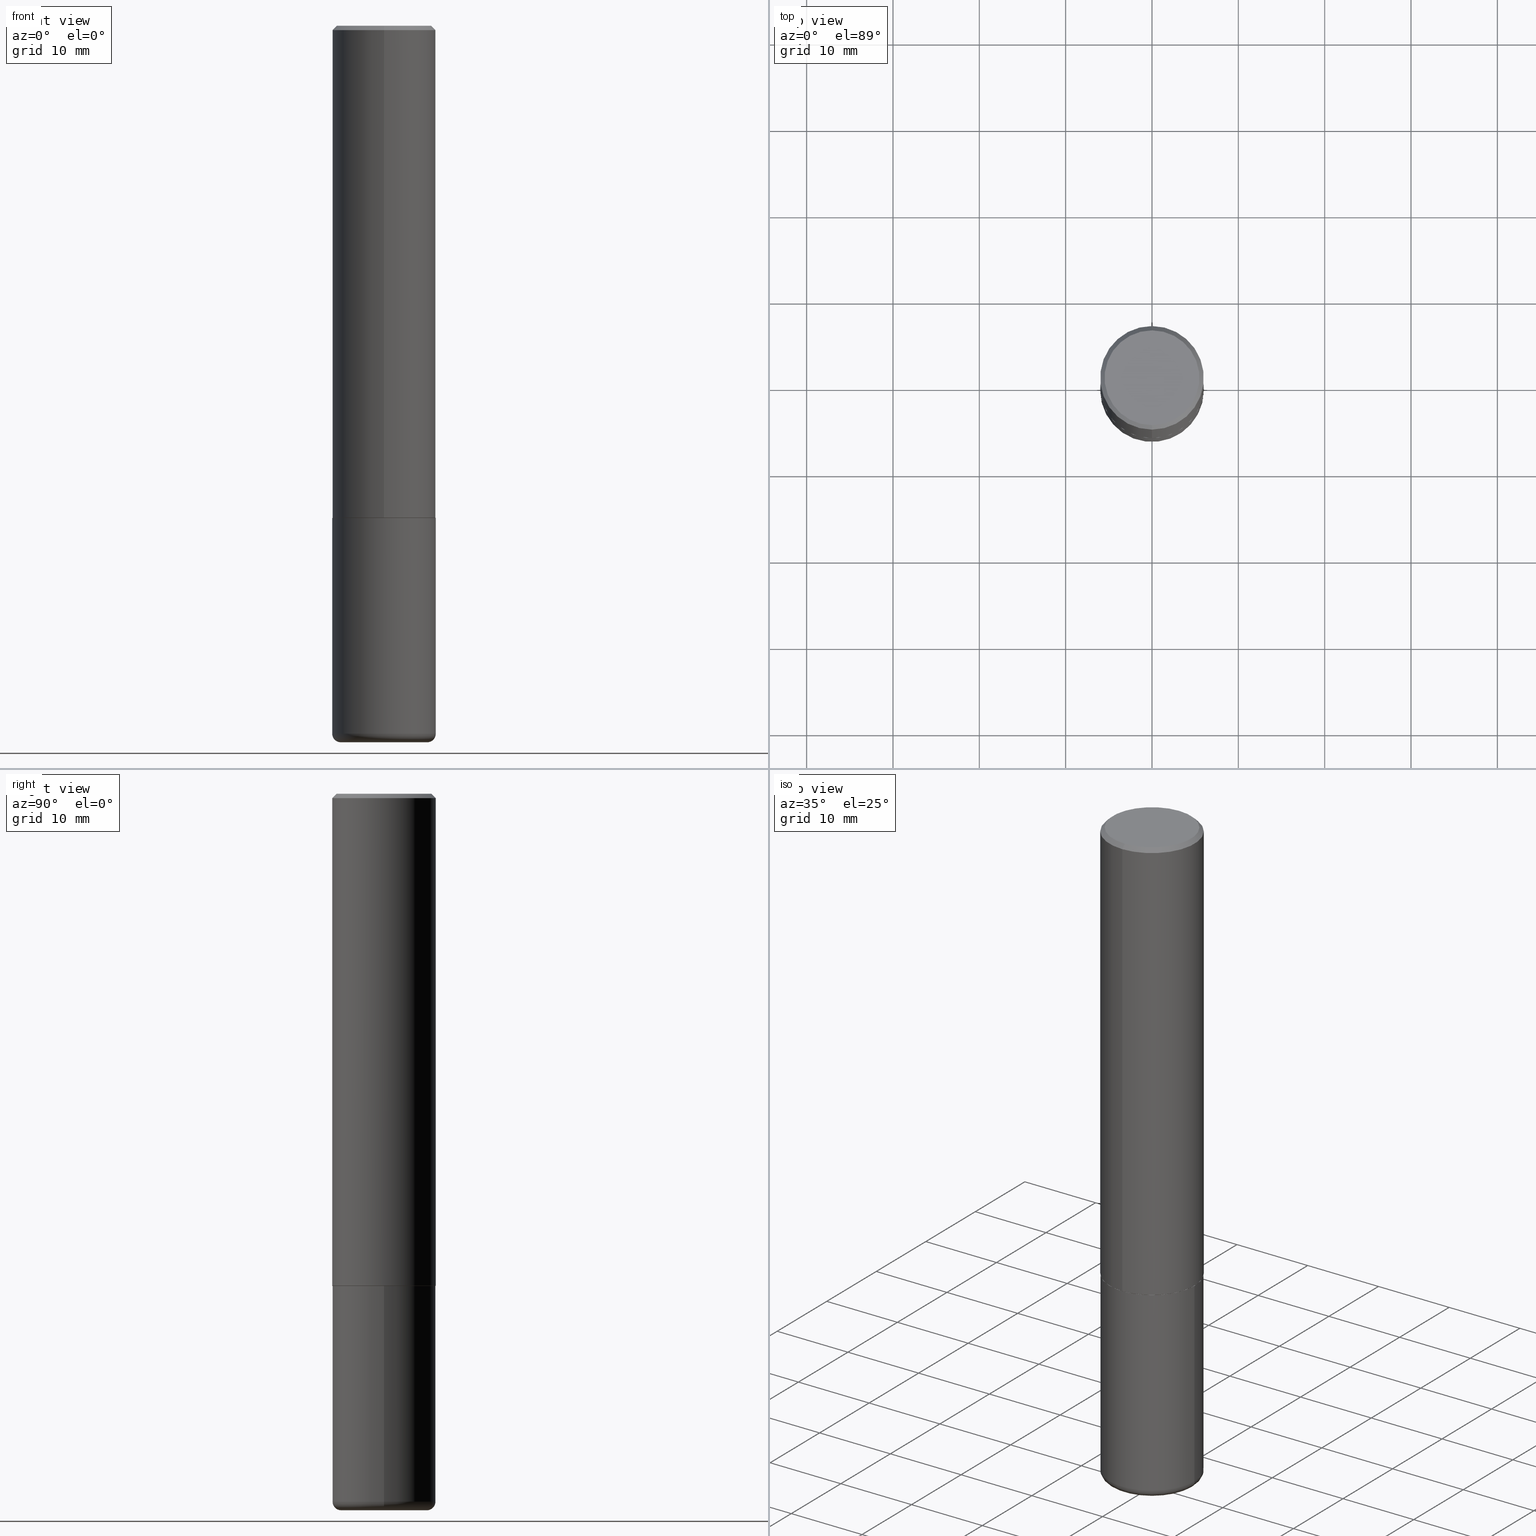
[diagram: canonical four-view strip — front | top / right | iso, engineering-drawing reading convention]
A machine part, canonical four-view strip (front | top / right | iso — engineering-drawing reading convention). The complete STEP part file that produces these views, byte-faithful:
ISO-10303-21;
HEADER;
FILE_DESCRIPTION (( 'STEP AP203' ),
    '1' );
FILE_NAME ('47127.STEP',
    '2024-03-05T21:29:14',
    ( '' ),
    ( '' ),
    'SwSTEP 2.0',
    'SolidWorks 2023',
    '' );
FILE_SCHEMA (( 'CONFIG_CONTROL_DESIGN' ));
ENDSEC;

DATA;
#1 = ORIENTED_EDGE ( 'NONE', *, *, #334, .T. ) ;
#2 = APPROVAL_DATE_TIME ( #75, #70 ) ;
#3 = DIRECTION ( 'NONE',  ( 2.445221809746292518E-29, -3.491835051801734308E-15, -1.000000000000000000 ) ) ;
#4 = COORDINATED_UNIVERSAL_TIME_OFFSET ( 5, 0, .BEHIND. ) ;
#5 = MANIFOLD_SOLID_BREP ( 'Body-Move/Copy2[2]', #49 ) ;
#6 = CARTESIAN_POINT ( 'NONE',  ( 5.487876547960065873E-29, -7.835233272497903917E-15, -2.244100000000000428 ) ) ;
#7 = ADVANCED_FACE ( 'NONE', ( #254 ), #137, .T. ) ;
#8 = AXIS2_PLACEMENT_3D ( 'NONE', #179, #269, #401 ) ;
#9 = FACE_OUTER_BOUND ( 'NONE', #319, .T. ) ;
#10 = EDGE_CURVE ( 'NONE', #187, #349, #339, .T. ) ;
#11 = DIRECTION ( 'NONE',  ( 1.000000000000000000, -6.982962677686270655E-15, 4.883557194083114583E-29 ) ) ;
#12 = CARTESIAN_POINT ( 'NONE',  ( 5.487322263251655570E-29, -7.836027039748271518E-15, -2.244099999999999984 ) ) ;
#13 = CONICAL_SURFACE ( 'NONE', #182, 0.2351999999999999924, 0.7853981633976873100 ) ;
#14 = AXIS2_PLACEMENT_3D ( 'NONE', #16, #379, #133 ) ;
#15 = FACE_OUTER_BOUND ( 'NONE', #134, .T. ) ;
#16 = CARTESIAN_POINT ( 'NONE',  ( 7.894706947007477118E-29, -1.127154920618732880E-14, -3.228299999999999947 ) ) ;
#17 = CARTESIAN_POINT ( 'NONE',  ( 1.678301941865357577E-15, 0.2362000000000001598, -8.247714392355702416E-16 ) ) ;
#18 = EDGE_LOOP ( 'NONE', ( #220, #340 ) ) ;
#19 = MANIFOLD_SOLID_BREP ( 'Body-Move/Copy2[1]', #416 ) ;
#20 = DIRECTION ( 'NONE',  ( 1.000000000000000000, -6.982962677686266711E-15, 4.876176775795936353E-29 ) ) ;
#21 = CONICAL_SURFACE ( 'NONE', #239, 0.2351999999999999924, 0.7853981633976873100 ) ;
#22 = ORIENTED_EDGE ( 'NONE', *, *, #355, .T. ) ;
#23 = DIRECTION ( 'NONE',  ( -6.982962677686265922E-15, -1.000000000000000000, 3.487819265831410167E-15 ) ) ;
#24 = VERTEX_POINT ( 'NONE', #380 ) ;
#25 = EDGE_CURVE ( 'NONE', #384, #171, #392, .T. ) ;
#26 = EDGE_LOOP ( 'NONE', ( #201, #242, #196, #360 ) ) ;
#27 = AXIS2_PLACEMENT_3D ( 'NONE', #415, #259, #99 ) ;
#28 = AXIS2_PLACEMENT_3D ( 'NONE', #206, #266, #42 ) ;
#29 = DIRECTION ( 'NONE',  ( -2.445221809746292518E-29, 3.491835051801734308E-15, 1.000000000000000000 ) ) ;
#30 = VECTOR ( 'NONE', #217, 39.37007874015748143 ) ;
#31 = APPLICATION_PROTOCOL_DEFINITION ( 'international standard', 'config_control_design', 1994, #267 ) ;
#32 = ORIENTED_EDGE ( 'NONE', *, *, #123, .F. ) ;
#33 = APPROVAL_STATUS ( 'not_yet_approved' ) ;
#34 = VERTEX_POINT ( 'NONE', #224 ) ;
#35 = APPROVAL_STATUS ( 'not_yet_approved' ) ;
#36 = UNCERTAINTY_MEASURE_WITH_UNIT (LENGTH_MEASURE( 1.000000000000000082E-05 ), #194, 'distance_accuracy_value', 'NONE');
#37 = ORIENTED_EDGE ( 'NONE', *, *, #180, .T. ) ;
#38 = CONICAL_SURFACE ( 'NONE', #394, 0.2362000000000000766, 0.7853981633974480570 ) ;
#39 = CC_DESIGN_SECURITY_CLASSIFICATION ( #85, ( #183 ) ) ;
#40 = CARTESIAN_POINT ( 'NONE',  ( 5.487876547960065873E-29, -7.835233272497903917E-15, -2.244100000000000428 ) ) ;
#41 = ADVANCED_FACE ( 'NONE', ( #387 ), #170, .T. ) ;
#42 = DIRECTION ( 'NONE',  ( -1.000000000000000000, 6.982962677686265922E-15, -4.876176775795935793E-29 ) ) ;
#43 = DIRECTION ( 'NONE',  ( 6.982962677686265922E-15, 1.000000000000000000, -3.487819265831410167E-15 ) ) ;
#44 = ADVANCED_FACE ( 'NONE', ( #106 ), #142, .T. ) ;
#45 = CIRCLE ( 'NONE', #378, 0.2351999999999999924 ) ;
#46 = DIRECTION ( 'NONE',  ( -1.000000000000000000, 6.982962677686265922E-15, -4.876176775795935793E-29 ) ) ;
#47 = DIRECTION ( 'NONE',  ( -6.982962677686265133E-15, -1.000000000000000000, 3.484499991918703113E-15 ) ) ;
#48 = DIRECTION ( 'NONE',  ( -2.445221809746292518E-29, 3.491835051801734308E-15, 1.000000000000000000 ) ) ;
#49 = CLOSED_SHELL ( 'NONE', ( #116, #128, #41, #83, #7, #54, #58, #162 ) ) ;
#50 = EDGE_CURVE ( 'NONE', #82, #103, #326, .T. ) ;
#51 = APPROVAL_PERSON_ORGANIZATION ( #225, #237, #320 ) ;
#52 = DIRECTION ( 'NONE',  ( 1.000000000000000000, -6.982962677686271444E-15, 0.000000000000000000 ) ) ;
#53 = EDGE_LOOP ( 'NONE', ( #69, #149, #22, #290 ) ) ;
#54 = ADVANCED_FACE ( 'NONE', ( #390 ), #13, .T. ) ;
#55 = CARTESIAN_POINT ( 'NONE',  ( 4.890443619492597157E-31, -6.983670103603485970E-17, -0.02000000000000005246 ) ) ;
#56 = EDGE_LOOP ( 'NONE', ( #159, #306 ) ) ;
#57 = CARTESIAN_POINT ( 'NONE',  ( 0.000000000000000000, 0.000000000000000000, 0.000000000000000000 ) ) ;
#58 = ADVANCED_FACE ( 'NONE', ( #111 ), #74, .F. ) ;
#59 = DIRECTION ( 'NONE',  ( 1.000000000000000000, -6.982962677686266711E-15, 4.876176775795936353E-29 ) ) ;
#60 = PRODUCT_DEFINITION ( 'UNKNOWN', '', #183, #293 ) ;
#61 = PERSON_AND_ORGANIZATION_ROLE ( 'design_owner' ) ;
#62 = DATE_TIME_ROLE ( 'creation_date' ) ;
#63 = ORIENTED_EDGE ( 'NONE', *, *, #406, .F. ) ;
#64 = ORIENTED_EDGE ( 'NONE', *, *, #25, .F. ) ;
#65 = AXIS2_PLACEMENT_3D ( 'NONE', #240, #367, #88 ) ;
#66 = COORDINATED_UNIVERSAL_TIME_OFFSET ( 5, 0, .BEHIND. ) ;
#67 = DIRECTION ( 'NONE',  ( -6.982962677686265922E-15, -1.000000000000000000, 3.491835051801734308E-15 ) ) ;
#68 = ORIENTED_EDGE ( 'NONE', *, *, #337, .T. ) ;
#69 = ORIENTED_EDGE ( 'NONE', *, *, #300, .F. ) ;
#70 = APPROVAL ( #265, 'UNSPECIFIED' ) ;
#71 = CC_DESIGN_APPROVAL ( #359, ( #60 ) ) ;
#72 = DATE_TIME_ROLE ( 'classification_date' ) ;
#73 = DIRECTION ( 'NONE',  ( -2.445221809746292518E-29, 3.491835051801734702E-15, 1.000000000000000000 ) ) ;
#74 = PLANE ( 'NONE',  #161 ) ;
#75 = DATE_AND_TIME ( #107, #272 ) ;
#76 = EDGE_CURVE ( 'NONE', #187, #171, #178, .T. ) ;
#77 = CARTESIAN_POINT ( 'NONE',  ( 1.579546157692633621E-15, 0.2161999999999999478, -6.694880156558795861E-16 ) ) ;
#78 = VECTOR ( 'NONE', #277, 39.37007874015748143 ) ;
#79 = DIRECTION ( 'NONE',  ( -2.445468806185136597E-29, 3.491481338843145583E-15, 1.000000000000000000 ) ) ;
#80 = CARTESIAN_POINT ( 'NONE',  ( 4.890443619492597157E-31, -6.983670103603485970E-17, -0.02000000000000005246 ) ) ;
#81 = CARTESIAN_POINT ( 'NONE',  ( 7.991058417971171713E-29, -1.140911357093774644E-14, -3.267700000000000049 ) ) ;
#82 = VERTEX_POINT ( 'NONE', #296 ) ;
#83 = ADVANCED_FACE ( 'NONE', ( #205 ), #38, .T. ) ;
#84 = CIRCLE ( 'NONE', #203, 0.1968000000000000027 ) ;
#85 = SECURITY_CLASSIFICATION ( '', '', #260 ) ;
#86 = CARTESIAN_POINT ( 'NONE',  ( -1.642392821791754699E-15, -0.2352000000000078195, -2.244099999999999095 ) ) ;
#87 = ADVANCED_FACE ( 'NONE', ( #329 ), #176, .F. ) ;
#88 = DIRECTION ( 'NONE',  ( -1.000000000000000000, 7.105427357601014480E-15, 0.000000000000000000 ) ) ;
#89 = EDGE_LOOP ( 'NONE', ( #168, #68, #152, #218 ) ) ;
#90 = LINE ( 'NONE', #314, #347 ) ;
#91 = EDGE_LOOP ( 'NONE', ( #389, #130, #156, #317 ) ) ;
#92 = AXIS2_PLACEMENT_3D ( 'NONE', #356, #29, #67 ) ;
#93 = LENGTH_MEASURE_WITH_UNIT ( LENGTH_MEASURE( 0.02539999999999999897 ), #383 );
#94 = AXIS2_PLACEMENT_3D ( 'NONE', #234, #139, #46 ) ;
#95 = CIRCLE ( 'NONE', #126, 0.03940000000000005997 ) ;
#96 = VERTEX_POINT ( 'NONE', #299 ) ;
#97 = CC_DESIGN_APPROVAL ( #70, ( #85 ) ) ;
#98 = COORDINATED_UNIVERSAL_TIME_OFFSET ( 5, 0, .BEHIND. ) ;
#99 = DIRECTION ( 'NONE',  ( -6.982962677686265922E-15, -1.000000000000000000, 3.487819265831410167E-15 ) ) ;
#100 = DATE_AND_TIME ( #158, #361 ) ;
#101 = DIRECTION ( 'NONE',  ( 6.982962677686265922E-15, 1.000000000000000000, -3.487819265831410167E-15 ) ) ;
#102 = DATE_AND_TIME ( #315, #417 ) ;
#103 = VERTEX_POINT ( 'NONE', #262 ) ;
#104 = APPROVAL_PERSON_ORGANIZATION ( #418, #359, #165 ) ;
#105 = MECHANICAL_CONTEXT ( 'NONE', #248, 'mechanical' ) ;
#106 = FACE_OUTER_BOUND ( 'NONE', #56, .T. ) ;
#107 = CALENDAR_DATE ( 2024, 5, 3 ) ;
#108 = ORIENTED_EDGE ( 'NONE', *, *, #50, .F. ) ;
#109 = EDGE_CURVE ( 'NONE', #103, #82, #284, .T. ) ;
#110 = CARTESIAN_POINT ( 'NONE',  ( 5.487322263251655570E-29, -7.836027039748271518E-15, -2.244099999999999984 ) ) ;
#111 = FACE_OUTER_BOUND ( 'NONE', #18, .T. ) ;
#112 = CARTESIAN_POINT ( 'NONE',  ( 0.000000000000000000, 0.000000000000000000, 0.000000000000000000 ) ) ;
#113 = CARTESIAN_POINT ( 'NONE',  ( -1.620449627073635473E-15, -0.2362000000000001321, -0.01999999999999922673 ) ) ;
#114 = AXIS2_PLACEMENT_3D ( 'NONE', #57, #404, #59 ) ;
#115 = CARTESIAN_POINT ( 'NONE',  ( -1.649375784469443080E-15, -0.2362000000000080979, -2.243099999999999206 ) ) ;
#116 = ADVANCED_FACE ( 'NONE', ( #9 ), #21, .T. ) ;
#117 = CARTESIAN_POINT ( 'NONE',  ( 1.649375784469496920E-15, 0.2361999999999999933, -0.02000000000000087472 ) ) ;
#118 = VERTEX_POINT ( 'NONE', #77 ) ;
#119 = DIRECTION ( 'NONE',  ( -2.445221809746292518E-29, 3.491835051801734308E-15, 1.000000000000000000 ) ) ;
#120 = ORIENTED_EDGE ( 'NONE', *, *, #308, .F. ) ;
#121 = VECTOR ( 'NONE', #167, 39.37007874015748143 ) ;
#122 = CARTESIAN_POINT ( 'NONE',  ( -2.089361895350857775E-45, 2.983658608395124733E-31, 8.544672254365514246E-17 ) ) ;
#123 = EDGE_CURVE ( 'NONE', #96, #103, #396, .T. ) ;
#124 = CARTESIAN_POINT ( 'NONE',  ( 7.991058417971171713E-29, -1.140911357093774644E-14, -3.267700000000000049 ) ) ;
#125 = LINE ( 'NONE', #275, #177 ) ;
#126 = AXIS2_PLACEMENT_3D ( 'NONE', #402, #405, #190 ) ;
#127 = ORIENTED_EDGE ( 'NONE', *, *, #50, .T. ) ;
#128 = ADVANCED_FACE ( 'NONE', ( #204 ), #395, .T. ) ;
#129 = LINE ( 'NONE', #160, #121 ) ;
#130 = ORIENTED_EDGE ( 'NONE', *, *, #199, .T. ) ;
#131 = APPROVAL_DATE_TIME ( #169, #237 ) ;
#132 = ORIENTED_EDGE ( 'NONE', *, *, #10, .F. ) ;
#133 = DIRECTION ( 'NONE',  ( 1.000000000000000000, -6.982962677686265133E-15, 0.000000000000000000 ) ) ;
#134 = EDGE_LOOP ( 'NONE', ( #228, #310, #108, #120 ) ) ;
#135 = VECTOR ( 'NONE', #145, 39.37007874015748143 ) ;
#136 = LOCAL_TIME ( 16, 29, 14.00000000000000000, #316 ) ;
#137 = CYLINDRICAL_SURFACE ( 'NONE', #92, 0.2362000000000001598 ) ;
#138 = SHAPE_DEFINITION_REPRESENTATION ( #211, #243 ) ;
#139 = DIRECTION ( 'NONE',  ( 2.438088387897960049E-29, -3.491481338843145188E-15, -1.000000000000000000 ) ) ;
#140 = FACE_OUTER_BOUND ( 'NONE', #323, .T. ) ;
#141 = CIRCLE ( 'NONE', #14, 0.2361999999999999933 ) ;
#142 = PLANE ( 'NONE',  #94 ) ;
#143 = PRODUCT_RELATED_PRODUCT_CATEGORY ( 'detail', '', ( #274 ) ) ;
#144 = PLANE ( 'NONE',  #328 ) ;
#145 = DIRECTION ( 'NONE',  ( -2.445468806185136877E-29, 3.491481338843145188E-15, 1.000000000000000000 ) ) ;
#146 = CIRCLE ( 'NONE', #65, 0.03940000000000005997 ) ;
#147 = ADVANCED_FACE ( 'NONE', ( #264 ), #214, .T. ) ;
#148 = FACE_OUTER_BOUND ( 'NONE', #91, .T. ) ;
#149 = ORIENTED_EDGE ( 'NONE', *, *, #180, .F. ) ;
#150 = DIRECTION ( 'NONE',  ( -6.982962677686265133E-15, -1.000000000000000000, 3.484499991918703113E-15 ) ) ;
#151 = CARTESIAN_POINT ( 'NONE',  ( -1.620449627073635473E-15, -0.2362000000000001321, -0.01999999999999922673 ) ) ;
#152 = ORIENTED_EDGE ( 'NONE', *, *, #244, .F. ) ;
#153 = CC_DESIGN_PERSON_AND_ORGANIZATION_ASSIGNMENT ( #291, #197, ( #183 ) ) ;
#154 = AXIS2_PLACEMENT_3D ( 'NONE', #333, #301, #11 ) ;
#155 = DIRECTION ( 'NONE',  ( -4.937700262165728178E-15, -0.7071067811867141062, 0.7071067811863809283 ) ) ;
#156 = ORIENTED_EDGE ( 'NONE', *, *, #209, .F. ) ;
#157 = CARTESIAN_POINT ( 'NONE',  ( 5.487322263251655570E-29, -7.836027039748271518E-15, -2.244099999999999984 ) ) ;
#158 = CALENDAR_DATE ( 2024, 5, 3 ) ;
#159 = ORIENTED_EDGE ( 'NONE', *, *, #352, .F. ) ;
#160 = CARTESIAN_POINT ( 'NONE',  ( 1.671196514507810212E-15, 0.2351999999999921653, -2.244100000000000872 ) ) ;
#161 = AXIS2_PLACEMENT_3D ( 'NONE', #238, #399, #297 ) ;
#162 = ADVANCED_FACE ( 'NONE', ( #140 ), #144, .F. ) ;
#163 = LOCAL_TIME ( 16, 29, 14.00000000000000000, #66 ) ;
#164 = CARTESIAN_POINT ( 'NONE',  ( 4.890443619492597157E-31, -6.983670103603485970E-17, -0.02000000000000005246 ) ) ;
#165 = APPROVAL_ROLE ( '' ) ;
#166 = ORIENTED_EDGE ( 'NONE', *, *, #244, .T. ) ;
#167 = DIRECTION ( 'NONE',  ( 5.024295867789263036E-15, 0.7071067811867189912, 0.7071067811863760433 ) ) ;
#168 = ORIENTED_EDGE ( 'NONE', *, *, #10, .T. ) ;
#169 = DATE_AND_TIME ( #282, #163 ) ;
#170 = CONICAL_SURFACE ( 'NONE', #270, 0.2362000000000000766, 0.7853981633974480570 ) ;
#171 = VERTEX_POINT ( 'NONE', #113 ) ;
#172 = AXIS2_PLACEMENT_3D ( 'NONE', #157, #280, #150 ) ;
#173 = DIRECTION ( 'NONE',  ( -6.982962677686265133E-15, -1.000000000000000000, 3.484499991918703113E-15 ) ) ;
#174 = APPROVAL_ROLE ( '' ) ;
#175 = DIRECTION ( 'NONE',  ( -6.982962677686265922E-15, -1.000000000000000000, 3.491835051801734308E-15 ) ) ;
#176 = PLANE ( 'NONE',  #28 ) ;
#177 = VECTOR ( 'NONE', #375, 39.37007874015748143 ) ;
#178 = LINE ( 'NONE', #332, #393 ) ;
#179 = CARTESIAN_POINT ( 'NONE',  ( -2.089361895350857775E-45, 2.983658608395124733E-31, 8.544672254365514246E-17 ) ) ;
#180 = EDGE_CURVE ( 'NONE', #118, #202, #410, .T. ) ;
#181 = CARTESIAN_POINT ( 'NONE',  ( -1.642392821791754699E-15, -0.2352000000000078195, -2.244099999999999095 ) ) ;
#182 = AXIS2_PLACEMENT_3D ( 'NONE', #12, #330, #173 ) ;
#183 = PRODUCT_DEFINITION_FORMATION_WITH_SPECIFIED_SOURCE ( 'ANY', '', #274, .NOT_KNOWN. ) ;
#184 = DIRECTION ( 'NONE',  ( -6.982962677686265922E-15, -1.000000000000000000, 3.469747663417773058E-15 ) ) ;
#185 = EDGE_LOOP ( 'NONE', ( #256, #1, #193, #64 ) ) ;
#186 = LINE ( 'NONE', #17, #78 ) ;
#187 = VERTEX_POINT ( 'NONE', #115 ) ;
#188 = CC_DESIGN_DATE_AND_TIME_ASSIGNMENT ( #100, #62, ( #60 ) ) ;
#189 = AXIS2_PLACEMENT_3D ( 'NONE', #386, #227, #348 ) ;
#190 = DIRECTION ( 'NONE',  ( 1.000000000000000000, -6.982962677686267499E-15, 0.000000000000000000 ) ) ;
#191 = PERSON ( 'UNSPECIFIED', 'UNSPECIFIED', 'UNSPECIFIED', ('UNSPECIFIED'), ('UNSPECIFIED'), ('UNSPECIFIED') ) ;
#192 =( NAMED_UNIT ( * ) SI_UNIT ( $, .STERADIAN. ) SOLID_ANGLE_UNIT ( ) );
#193 = ORIENTED_EDGE ( 'NONE', *, *, #76, .T. ) ;
#194 =( CONVERSION_BASED_UNIT ( 'INCH', #93 ) LENGTH_UNIT ( ) NAMED_UNIT ( #286 ) );
#195 = AXIS2_PLACEMENT_3D ( 'NONE', #210, #407, #20 ) ;
#196 = ORIENTED_EDGE ( 'NONE', *, *, #381, .T. ) ;
#197 = PERSON_AND_ORGANIZATION_ROLE ( 'design_supplier' ) ;
#198 = ORIENTED_EDGE ( 'NONE', *, *, #109, .F. ) ;
#199 = EDGE_CURVE ( 'NONE', #226, #96, #146, .T. ) ;
#200 =( NAMED_UNIT ( * ) PLANE_ANGLE_UNIT ( ) SI_UNIT ( $, .RADIAN. ) );
#201 = ORIENTED_EDGE ( 'NONE', *, *, #199, .F. ) ;
#202 = VERTEX_POINT ( 'NONE', #303 ) ;
#203 = AXIS2_PLACEMENT_3D ( 'NONE', #81, #212, #52 ) ;
#204 = FACE_OUTER_BOUND ( 'NONE', #89, .T. ) ;
#205 = FACE_OUTER_BOUND ( 'NONE', #53, .T. ) ;
#206 = CARTESIAN_POINT ( 'NONE',  ( 5.487876547960065873E-29, -7.835233272497903917E-15, -2.244100000000000428 ) ) ;
#207 = AXIS2_PLACEMENT_3D ( 'NONE', #55, #119, #23 ) ;
#208 = DIRECTION ( 'NONE',  ( 6.982962677686265922E-15, 1.000000000000000000, -3.491835051801734702E-15 ) ) ;
#209 = EDGE_CURVE ( 'NONE', #24, #96, #318, .T. ) ;
#210 = CARTESIAN_POINT ( 'NONE',  ( 0.000000000000000000, 0.000000000000000000, 0.000000000000000000 ) ) ;
#211 = PRODUCT_DEFINITION_SHAPE ( 'NONE', 'NONE',  #60 ) ;
#212 = DIRECTION ( 'NONE',  ( -2.445468806185136597E-29, 3.491481338843145583E-15, 1.000000000000000000 ) ) ;
#213 = EDGE_LOOP ( 'NONE', ( #127, #382 ) ) ;
#214 = TOROIDAL_SURFACE ( 'NONE', #154, 0.1968000000000000027, 0.03940000000000005997 ) ;
#215 = AXIS2_PLACEMENT_3D ( 'NONE', #124, #241, #309 ) ;
#216 = CARTESIAN_POINT ( 'NONE',  ( 5.487322263251655570E-29, -7.836027039748271518E-15, -2.244099999999999984 ) ) ;
#217 = DIRECTION ( 'NONE',  ( -4.851104656540962697E-15, -0.7071067811865497932, -0.7071067811865452413 ) ) ;
#218 = ORIENTED_EDGE ( 'NONE', *, *, #76, .F. ) ;
#219 = DIRECTION ( 'NONE',  ( -2.445221809746292518E-29, 3.491835051801734308E-15, 1.000000000000000000 ) ) ;
#220 = ORIENTED_EDGE ( 'NONE', *, *, #235, .F. ) ;
#221 = AXIS2_PLACEMENT_3D ( 'NONE', #346, #48, #184 ) ;
#222 = ADVANCED_FACE ( 'NONE', ( #273 ), #344, .T. ) ;
#223 = PERSON_AND_ORGANIZATION ( #191, #252 ) ;
#224 = CARTESIAN_POINT ( 'NONE',  ( 0.1968000000000000027, -1.278336062590640454E-14, -3.267700000000000049 ) ) ;
#225 = PERSON_AND_ORGANIZATION ( #191, #252 ) ;
#226 = VERTEX_POINT ( 'NONE', #338 ) ;
#227 = DIRECTION ( 'NONE',  ( 0.000000000000000000, 0.000000000000000000, 1.000000000000000000 ) ) ;
#228 = ORIENTED_EDGE ( 'NONE', *, *, #209, .T. ) ;
#229 = APPROVAL_DATE_TIME ( #102, #359 ) ;
#230 = DIRECTION ( 'NONE',  ( -6.982962677686265922E-15, -1.000000000000000000, 3.469747663417773058E-15 ) ) ;
#231 = DIRECTION ( 'NONE',  ( -2.445221809746292518E-29, 3.491835051801734308E-15, 1.000000000000000000 ) ) ;
#232 = CARTESIAN_POINT ( 'NONE',  ( -0.2361999999999999933, 1.678301941865356591E-15, -1.161852468318208757E-29 ) ) ;
#233 = AXIS2_PLACEMENT_3D ( 'NONE', #112, #236, #175 ) ;
#234 = CARTESIAN_POINT ( 'NONE',  ( 7.991058417971171713E-29, -1.140911357093774644E-14, -3.267700000000000049 ) ) ;
#235 = EDGE_CURVE ( 'NONE', #261, #413, #45, .T. ) ;
#236 = DIRECTION ( 'NONE',  ( -2.445221809746292518E-29, 3.491835051801734308E-15, 1.000000000000000000 ) ) ;
#237 = APPROVAL ( #35, 'UNSPECIFIED' ) ;
#238 = CARTESIAN_POINT ( 'NONE',  ( 5.487322263251655570E-29, -7.836027039748273096E-15, -2.244100000000000428 ) ) ;
#239 = AXIS2_PLACEMENT_3D ( 'NONE', #110, #365, #47 ) ;
#240 = CARTESIAN_POINT ( 'NONE',  ( -0.1968000000000000027, -9.873201102211451027E-15, -3.228299999999999947 ) ) ;
#241 = DIRECTION ( 'NONE',  ( -2.445468806185136597E-29, 3.491481338843145583E-15, 1.000000000000000000 ) ) ;
#242 = ORIENTED_EDGE ( 'NONE', *, *, #391, .T. ) ;
#243 = ADVANCED_BREP_SHAPE_REPRESENTATION ( '47127', ( #19, #5, #189 ), #312 ) ;
#244 = EDGE_CURVE ( 'NONE', #171, #384, #385, .T. ) ;
#245 = DIRECTION ( 'NONE',  ( -2.445468806185136877E-29, 3.491481338843145188E-15, 1.000000000000000000 ) ) ;
#246 = AXIS2_PLACEMENT_3D ( 'NONE', #307, #403, #370 ) ;
#247 = CARTESIAN_POINT ( 'NONE',  ( 1.678301941865385779E-15, 0.2361999999999924715, -2.243100000000000982 ) ) ;
#248 = APPLICATION_CONTEXT ( 'configuration controlled 3d designs of mechanical parts and assemblies' ) ;
#249 = DIRECTION ( 'NONE',  ( -2.445468806185136597E-29, 3.491481338843145583E-15, 1.000000000000000000 ) ) ;
#250 = DIRECTION ( 'NONE',  ( -2.445221809746292518E-29, 3.491835051801734308E-15, 1.000000000000000000 ) ) ;
#251 = ORIENTED_EDGE ( 'NONE', *, *, #324, .F. ) ;
#252 = ORGANIZATION ( 'UNSPECIFIED', 'UNSPECIFIED', '' ) ;
#253 = APPLICATION_PROTOCOL_DEFINITION ( 'international standard', 'config_control_design', 1994, #248 ) ;
#254 = FACE_OUTER_BOUND ( 'NONE', #185, .T. ) ;
#255 = ORIENTED_EDGE ( 'NONE', *, *, #355, .F. ) ;
#256 = ORIENTED_EDGE ( 'NONE', *, *, #337, .F. ) ;
#257 = CC_DESIGN_PERSON_AND_ORGANIZATION_ASSIGNMENT ( #322, #412, ( #60 ) ) ;
#258 = AXIS2_PLACEMENT_3D ( 'NONE', #122, #250, #305 ) ;
#259 = DIRECTION ( 'NONE',  ( -2.445221809746292518E-29, 3.491835051801734308E-15, 1.000000000000000000 ) ) ;
#260 = SECURITY_CLASSIFICATION_LEVEL ( 'unclassified' ) ;
#261 = VERTEX_POINT ( 'NONE', #86 ) ;
#262 = CARTESIAN_POINT ( 'NONE',  ( -0.2361999999999999933, -7.875089297477259967E-15, -2.244100000000000428 ) ) ;
#263 = TOROIDAL_SURFACE ( 'NONE', #271, 0.1968000000000000027, 0.03940000000000005997 ) ;
#264 = FACE_OUTER_BOUND ( 'NONE', #26, .T. ) ;
#265 = APPROVAL_STATUS ( 'not_yet_approved' ) ;
#266 = DIRECTION ( 'NONE',  ( 2.438088387897960049E-29, -3.491481338843145188E-15, -1.000000000000000000 ) ) ;
#267 = APPLICATION_CONTEXT ( 'configuration controlled 3d designs of mechanical parts and assemblies' ) ;
#268 = CARTESIAN_POINT ( 'NONE',  ( 1.509716530915770323E-15, 0.2161999999999999478, -7.122113769277070896E-16 ) ) ;
#269 = DIRECTION ( 'NONE',  ( -2.445221809746292518E-29, 3.491835051801734308E-15, 1.000000000000000000 ) ) ;
#270 = AXIS2_PLACEMENT_3D ( 'NONE', #164, #411, #101 ) ;
#271 = AXIS2_PLACEMENT_3D ( 'NONE', #369, #249, #373 ) ;
#272 = LOCAL_TIME ( 16, 29, 14.00000000000000000, #4 ) ;
#273 = FACE_OUTER_BOUND ( 'NONE', #285, .T. ) ;
#274 = PRODUCT ( '47127', '47127', '', ( #105 ) ) ;
#275 = CARTESIAN_POINT ( 'NONE',  ( 1.649375784469496920E-15, 0.2361999999999999933, -0.02000000000000087472 ) ) ;
#276 = ORIENTED_EDGE ( 'NONE', *, *, #311, .T. ) ;
#277 = DIRECTION ( 'NONE',  ( -2.445221809746292518E-29, 3.491835051801734702E-15, 1.000000000000000000 ) ) ;
#278 = ORIENTED_EDGE ( 'NONE', *, *, #398, .T. ) ;
#279 = VECTOR ( 'NONE', #155, 39.37007874015748143 ) ;
#280 = DIRECTION ( 'NONE',  ( -2.445221809746292518E-29, 3.491835051801734308E-15, 1.000000000000000000 ) ) ;
#281 = LINE ( 'NONE', #181, #279 ) ;
#282 = CALENDAR_DATE ( 2024, 5, 3 ) ;
#283 = EDGE_LOOP ( 'NONE', ( #63, #276, #409, #345 ) ) ;
#284 = CIRCLE ( 'NONE', #400, 0.2361999999999999933 ) ;
#285 = EDGE_LOOP ( 'NONE', ( #32, #278, #353, #198 ) ) ;
#286 = DIMENSIONAL_EXPONENTS ( 1.000000000000000000, 0.000000000000000000, 0.000000000000000000, 0.000000000000000000, 0.000000000000000000, 0.000000000000000000, 0.000000000000000000 ) ;
#287 = COORDINATED_UNIVERSAL_TIME_OFFSET ( 5, 0, .BEHIND. ) ;
#288 = ORIENTED_EDGE ( 'NONE', *, *, #406, .T. ) ;
#289 = PERSON_AND_ORGANIZATION ( #191, #252 ) ;
#290 = ORIENTED_EDGE ( 'NONE', *, *, #25, .T. ) ;
#291 = PERSON_AND_ORGANIZATION ( #191, #252 ) ;
#292 = CIRCLE ( 'NONE', #215, 0.1968000000000000027 ) ;
#293 = DESIGN_CONTEXT ( 'detailed design', #267, 'design' ) ;
#294 = ORIENTED_EDGE ( 'NONE', *, *, #364, .F. ) ;
#295 = CC_DESIGN_PERSON_AND_ORGANIZATION_ASSIGNMENT ( #408, #354, ( #183 ) ) ;
#296 = CARTESIAN_POINT ( 'NONE',  ( 0.2361999999999999933, -9.484609056967400443E-15, -2.244100000000000428 ) ) ;
#297 = DIRECTION ( 'NONE',  ( -6.982962677686265922E-15, -1.000000000000000000, 3.491835051801734702E-15 ) ) ;
#298 = CIRCLE ( 'NONE', #221, 0.2362000000000002709 ) ;
#299 = CARTESIAN_POINT ( 'NONE',  ( -0.2362000000000000210, -9.593247264321970832E-15, -3.228299999999999947 ) ) ;
#300 = EDGE_CURVE ( 'NONE', #202, #171, #336, .T. ) ;
#301 = DIRECTION ( 'NONE',  ( -2.445468806185136597E-29, 3.491481338843145583E-15, 1.000000000000000000 ) ) ;
#302 = DIRECTION ( 'NONE',  ( -2.445468806185136597E-29, 3.491481338843145583E-15, 1.000000000000000000 ) ) ;
#303 = CARTESIAN_POINT ( 'NONE',  ( -1.551844647095920142E-15, -0.2161999999999999478, 8.403814607431897971E-16 ) ) ;
#304 = CC_DESIGN_DATE_AND_TIME_ASSIGNMENT ( #397, #72, ( #85 ) ) ;
#305 = DIRECTION ( 'NONE',  ( -6.982962677686265922E-15, -1.000000000000000000, 3.491835051801733913E-15 ) ) ;
#306 = ORIENTED_EDGE ( 'NONE', *, *, #391, .F. ) ;
#307 = CARTESIAN_POINT ( 'NONE',  ( 7.894706947007477118E-29, -1.127154920618732880E-14, -3.228299999999999947 ) ) ;
#308 = EDGE_CURVE ( 'NONE', #24, #82, #90, .T. ) ;
#309 = DIRECTION ( 'NONE',  ( 1.000000000000000000, -6.982962677686271444E-15, 0.000000000000000000 ) ) ;
#310 = ORIENTED_EDGE ( 'NONE', *, *, #123, .T. ) ;
#311 = EDGE_CURVE ( 'NONE', #413, #261, #366, .T. ) ;
#312 =( GEOMETRIC_REPRESENTATION_CONTEXT ( 3 ) GLOBAL_UNCERTAINTY_ASSIGNED_CONTEXT ( ( #36 ) ) GLOBAL_UNIT_ASSIGNED_CONTEXT ( ( #194, #200, #192 ) ) REPRESENTATION_CONTEXT ( 'NONE', 'WORKASPACE' ) );
#313 = APPROVAL_PERSON_ORGANIZATION ( #327, #70, #174 ) ;
#314 = CARTESIAN_POINT ( 'NONE',  ( 0.2361999999999999933, -1.649375784469496131E-15, 1.151752954443000088E-29 ) ) ;
#315 = CALENDAR_DATE ( 2024, 5, 3 ) ;
#316 = COORDINATED_UNIVERSAL_TIME_OFFSET ( 5, 0, .BEHIND. ) ;
#317 = ORIENTED_EDGE ( 'NONE', *, *, #381, .F. ) ;
#318 = CIRCLE ( 'NONE', #246, 0.2361999999999999933 ) ;
#319 = EDGE_LOOP ( 'NONE', ( #376, #288, #132, #294 ) ) ;
#320 = APPROVAL_ROLE ( '' ) ;
#321 = ORIENTED_EDGE ( 'NONE', *, *, #324, .T. ) ;
#322 = PERSON_AND_ORGANIZATION ( #191, #252 ) ;
#323 = EDGE_LOOP ( 'NONE', ( #37, #321 ) ) ;
#324 = EDGE_CURVE ( 'NONE', #202, #118, #341, .T. ) ;
#325 = AXIS2_PLACEMENT_3D ( 'NONE', #358, #231, #230 ) ;
#326 = CIRCLE ( 'NONE', #377, 0.2361999999999999933 ) ;
#327 = PERSON_AND_ORGANIZATION ( #191, #252 ) ;
#328 = AXIS2_PLACEMENT_3D ( 'NONE', #268, #335, #208 ) ;
#329 = FACE_OUTER_BOUND ( 'NONE', #213, .T. ) ;
#330 = DIRECTION ( 'NONE',  ( -2.445221809746292518E-29, 3.491835051801734308E-15, 1.000000000000000000 ) ) ;
#331 = ADVANCED_FACE ( 'NONE', ( #15 ), #343, .T. ) ;
#332 = CARTESIAN_POINT ( 'NONE',  ( -1.649375784469497117E-15, -0.2362000000000001598, 8.247714392355702416E-16 ) ) ;
#333 = CARTESIAN_POINT ( 'NONE',  ( 7.894706947007477118E-29, -1.127154920618732880E-14, -3.228299999999999947 ) ) ;
#334 = EDGE_CURVE ( 'NONE', #349, #187, #298, .T. ) ;
#335 = DIRECTION ( 'NONE',  ( 2.445221809746291958E-29, -3.491835051801734702E-15, -1.000000000000000000 ) ) ;
#336 = LINE ( 'NONE', #151, #30 ) ;
#337 = EDGE_CURVE ( 'NONE', #349, #384, #186, .T. ) ;
#338 = CARTESIAN_POINT ( 'NONE',  ( -0.1968000000000000027, -9.802006365641922115E-15, -3.267700000000000049 ) ) ;
#339 = CIRCLE ( 'NONE', #325, 0.2362000000000002709 ) ;
#340 = ORIENTED_EDGE ( 'NONE', *, *, #311, .F. ) ;
#341 = CIRCLE ( 'NONE', #258, 0.2161999999999999478 ) ;
#342 = CC_DESIGN_APPROVAL ( #237, ( #183 ) ) ;
#343 = CYLINDRICAL_SURFACE ( 'NONE', #114, 0.2361999999999999933 ) ;
#344 = CYLINDRICAL_SURFACE ( 'NONE', #195, 0.2361999999999999933 ) ;
#345 = ORIENTED_EDGE ( 'NONE', *, *, #334, .F. ) ;
#346 = CARTESIAN_POINT ( 'NONE',  ( 5.484877041441908919E-29, -7.832535204696471708E-15, -2.243100000000000094 ) ) ;
#347 = VECTOR ( 'NONE', #245, 39.37007874015748143 ) ;
#348 = DIRECTION ( 'NONE',  ( 1.000000000000000000, 0.000000000000000000, 0.000000000000000000 ) ) ;
#349 = VERTEX_POINT ( 'NONE', #247 ) ;
#350 = PERSON_AND_ORGANIZATION_ROLE ( 'classification_officer' ) ;
#351 = ORIENTED_EDGE ( 'NONE', *, *, #300, .T. ) ;
#352 = EDGE_CURVE ( 'NONE', #34, #226, #292, .T. ) ;
#353 = ORIENTED_EDGE ( 'NONE', *, *, #308, .T. ) ;
#354 = PERSON_AND_ORGANIZATION_ROLE ( 'creator' ) ;
#355 = EDGE_CURVE ( 'NONE', #118, #384, #125, .T. ) ;
#356 = CARTESIAN_POINT ( 'NONE',  ( 0.000000000000000000, 0.000000000000000000, 0.000000000000000000 ) ) ;
#357 = CARTESIAN_POINT ( 'NONE',  ( 1.674749228186611702E-15, 0.2351999999999921653, -2.244100000000000872 ) ) ;
#358 = CARTESIAN_POINT ( 'NONE',  ( 5.484877041441908919E-29, -7.832535204696471708E-15, -2.243100000000000094 ) ) ;
#359 = APPROVAL ( #33, 'UNSPECIFIED' ) ;
#360 = ORIENTED_EDGE ( 'NONE', *, *, #398, .F. ) ;
#361 = LOCAL_TIME ( 16, 29, 14.00000000000000000, #98 ) ;
#362 = DIRECTION ( 'NONE',  ( 1.000000000000000000, -6.982962677686269077E-15, 0.000000000000000000 ) ) ;
#363 = DIRECTION ( 'NONE',  ( 1.000000000000000000, -6.982962677686269077E-15, 0.000000000000000000 ) ) ;
#364 = EDGE_CURVE ( 'NONE', #261, #187, #281, .T. ) ;
#365 = DIRECTION ( 'NONE',  ( -2.445221809746292518E-29, 3.491835051801734308E-15, 1.000000000000000000 ) ) ;
#366 = CIRCLE ( 'NONE', #172, 0.2351999999999999924 ) ;
#367 = DIRECTION ( 'NONE',  ( 7.105427357601001859E-15, 1.000000000000000000, -3.491481338843145583E-15 ) ) ;
#368 = CC_DESIGN_PERSON_AND_ORGANIZATION_ASSIGNMENT ( #289, #61, ( #274 ) ) ;
#369 = CARTESIAN_POINT ( 'NONE',  ( 7.894706947007477118E-29, -1.127154920618732880E-14, -3.228299999999999947 ) ) ;
#370 = DIRECTION ( 'NONE',  ( 1.000000000000000000, -6.982962677686265133E-15, 0.000000000000000000 ) ) ;
#371 = ADVANCED_FACE ( 'NONE', ( #148 ), #263, .T. ) ;
#372 = DIRECTION ( 'NONE',  ( -6.982962677686265133E-15, -1.000000000000000000, 3.484499991918703113E-15 ) ) ;
#373 = DIRECTION ( 'NONE',  ( 1.000000000000000000, -6.982962677686270655E-15, 4.883557194083114583E-29 ) ) ;
#374 = EDGE_LOOP ( 'NONE', ( #251, #351, #166, #255 ) ) ;
#375 = DIRECTION ( 'NONE',  ( 4.937700262164546464E-15, 0.7071067811865449082, -0.7071067811865501263 ) ) ;
#376 = ORIENTED_EDGE ( 'NONE', *, *, #235, .T. ) ;
#377 = AXIS2_PLACEMENT_3D ( 'NONE', #40, #79, #363 ) ;
#378 = AXIS2_PLACEMENT_3D ( 'NONE', #216, #219, #372 ) ;
#379 = DIRECTION ( 'NONE',  ( -2.445468806185136597E-29, 3.491481338843145583E-15, 1.000000000000000000 ) ) ;
#380 = CARTESIAN_POINT ( 'NONE',  ( 0.2362000000000000210, -1.292092499065682375E-14, -3.228299999999999947 ) ) ;
#381 = EDGE_CURVE ( 'NONE', #34, #24, #95, .T. ) ;
#382 = ORIENTED_EDGE ( 'NONE', *, *, #109, .T. ) ;
#383 =( LENGTH_UNIT ( ) NAMED_UNIT ( * ) SI_UNIT ( $, .METRE. ) );
#384 = VERTEX_POINT ( 'NONE', #117 ) ;
#385 = CIRCLE ( 'NONE', #207, 0.2362000000000000766 ) ;
#386 = CARTESIAN_POINT ( 'NONE',  ( 0.000000000000000000, 0.000000000000000000, 0.000000000000000000 ) ) ;
#387 = FACE_OUTER_BOUND ( 'NONE', #374, .T. ) ;
#388 = CALENDAR_DATE ( 2024, 5, 3 ) ;
#389 = ORIENTED_EDGE ( 'NONE', *, *, #352, .T. ) ;
#390 = FACE_OUTER_BOUND ( 'NONE', #283, .T. ) ;
#391 = EDGE_CURVE ( 'NONE', #226, #34, #84, .T. ) ;
#392 = CIRCLE ( 'NONE', #27, 0.2362000000000000766 ) ;
#393 = VECTOR ( 'NONE', #73, 39.37007874015748143 ) ;
#394 = AXIS2_PLACEMENT_3D ( 'NONE', #80, #3, #43 ) ;
#395 = CYLINDRICAL_SURFACE ( 'NONE', #233, 0.2362000000000001598 ) ;
#396 = LINE ( 'NONE', #232, #135 ) ;
#397 = DATE_AND_TIME ( #388, #136 ) ;
#398 = EDGE_CURVE ( 'NONE', #96, #24, #141, .T. ) ;
#399 = DIRECTION ( 'NONE',  ( -2.445221809746291958E-29, 3.491835051801734702E-15, 1.000000000000000000 ) ) ;
#400 = AXIS2_PLACEMENT_3D ( 'NONE', #6, #302, #362 ) ;
#401 = DIRECTION ( 'NONE',  ( -6.982962677686265922E-15, -1.000000000000000000, 3.491835051801733913E-15 ) ) ;
#402 = CARTESIAN_POINT ( 'NONE',  ( 0.1968000000000000027, -1.264579626115598374E-14, -3.228299999999999947 ) ) ;
#403 = DIRECTION ( 'NONE',  ( -2.445468806185136597E-29, 3.491481338843145583E-15, 1.000000000000000000 ) ) ;
#404 = DIRECTION ( 'NONE',  ( -2.445468806185136597E-29, 3.491481338843145583E-15, 1.000000000000000000 ) ) ;
#405 = DIRECTION ( 'NONE',  ( -6.982962677686266711E-15, -1.000000000000000000, 3.491481338843145583E-15 ) ) ;
#406 = EDGE_CURVE ( 'NONE', #413, #349, #129, .T. ) ;
#407 = DIRECTION ( 'NONE',  ( -2.445468806185136597E-29, 3.491481338843145583E-15, 1.000000000000000000 ) ) ;
#408 = PERSON_AND_ORGANIZATION ( #191, #252 ) ;
#409 = ORIENTED_EDGE ( 'NONE', *, *, #364, .T. ) ;
#410 = CIRCLE ( 'NONE', #8, 0.2161999999999999478 ) ;
#411 = DIRECTION ( 'NONE',  ( 2.445221809746292518E-29, -3.491835051801734308E-15, -1.000000000000000000 ) ) ;
#412 = PERSON_AND_ORGANIZATION_ROLE ( 'creator' ) ;
#413 = VERTEX_POINT ( 'NONE', #357 ) ;
#414 = CC_DESIGN_PERSON_AND_ORGANIZATION_ASSIGNMENT ( #223, #350, ( #85 ) ) ;
#415 = CARTESIAN_POINT ( 'NONE',  ( 4.890443619492597157E-31, -6.983670103603485970E-17, -0.02000000000000005246 ) ) ;
#416 = CLOSED_SHELL ( 'NONE', ( #331, #371, #87, #222, #147, #44 ) ) ;
#417 = LOCAL_TIME ( 16, 29, 14.00000000000000000, #287 ) ;
#418 = PERSON_AND_ORGANIZATION ( #191, #252 ) ;
ENDSEC;
END-ISO-10303-21;
